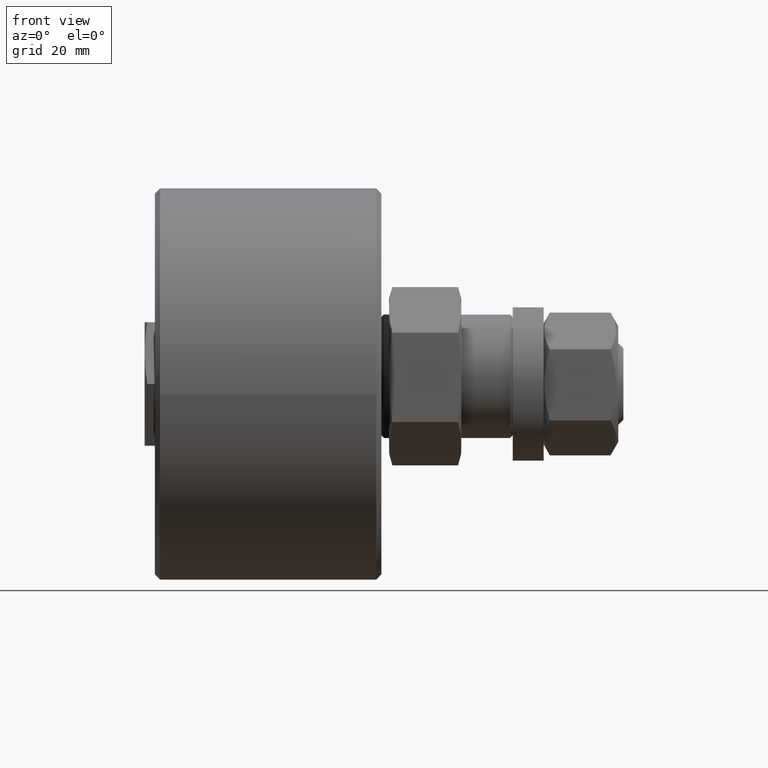
[diagram: clean part render]
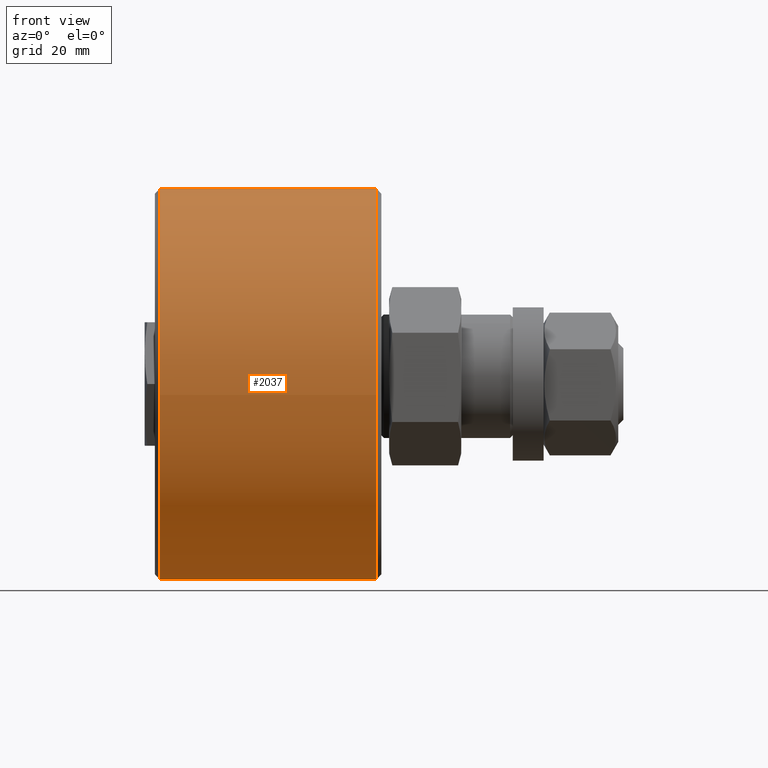
[diagram: same view with one face highlighted and labeled with its STEP entity id]
A machine part, front view. The second image highlights one B-rep face of the part: STEP entity #2037.
In plain terms, the highlighted cylindrical surface (bore or boss wall) has radius 38 mm, axis along (1, -0, 0).
Its self-contained STEP definition (entity closure, byte-faithful):
#281=CYLINDRICAL_SURFACE('',#2385,38.);
#350=FACE_OUTER_BOUND('',#475,.T.);
#475=EDGE_LOOP('',(#1616,#1617,#1618,#1619,#1620,#1621));
#608=LINE('',#3484,#682);
#682=VECTOR('',#2824,38.);
#758=CIRCLE('',#2383,38.);
#759=CIRCLE('',#2384,38.);
#760=CIRCLE('',#2386,38.);
#761=CIRCLE('',#2387,38.);
#924=VERTEX_POINT('',#3474);
#925=VERTEX_POINT('',#3475);
#926=VERTEX_POINT('',#3480);
#927=VERTEX_POINT('',#3481);
#1178=EDGE_CURVE('',#924,#925,#758,.T.);
#1179=EDGE_CURVE('',#925,#924,#759,.T.);
#1181=EDGE_CURVE('',#926,#927,#760,.T.);
#1182=EDGE_CURVE('',#927,#926,#761,.T.);
#1183=EDGE_CURVE('',#927,#925,#608,.T.);
#1616=ORIENTED_EDGE('',*,*,#1181,.F.);
#1617=ORIENTED_EDGE('',*,*,#1182,.F.);
#1618=ORIENTED_EDGE('',*,*,#1183,.T.);
#1619=ORIENTED_EDGE('',*,*,#1178,.F.);
#1620=ORIENTED_EDGE('',*,*,#1179,.F.);
#1621=ORIENTED_EDGE('',*,*,#1183,.F.);
#2037=ADVANCED_FACE('',(#350),#281,.T.);
#2383=AXIS2_PLACEMENT_3D('',#3476,#2813,#2814);
#2384=AXIS2_PLACEMENT_3D('',#3477,#2815,#2816);
#2385=AXIS2_PLACEMENT_3D('',#3479,#2818,#2819);
#2386=AXIS2_PLACEMENT_3D('',#3482,#2820,#2821);
#2387=AXIS2_PLACEMENT_3D('',#3483,#2822,#2823);
#2813=DIRECTION('center_axis',(-1.,0.,0.));
#2814=DIRECTION('ref_axis',(0.,-1.,0.));
#2815=DIRECTION('center_axis',(-1.,0.,0.));
#2816=DIRECTION('ref_axis',(0.,-1.,0.));
#2818=DIRECTION('center_axis',(1.,0.,0.));
#2819=DIRECTION('ref_axis',(0.,1.,0.));
#2820=DIRECTION('center_axis',(1.,0.,0.));
#2821=DIRECTION('ref_axis',(0.,-1.,0.));
#2822=DIRECTION('center_axis',(1.,0.,0.));
#2823=DIRECTION('ref_axis',(0.,-1.,0.));
#2824=DIRECTION('',(-1.,0.,0.));
#3474=CARTESIAN_POINT('',(-21.,38.,-4.65365783675994E-15));
#3475=CARTESIAN_POINT('',(-21.,-38.,-4.65365783675994E-15));
#3476=CARTESIAN_POINT('Origin',(-21.,0.,0.));
#3477=CARTESIAN_POINT('Origin',(-21.,0.,0.));
#3479=CARTESIAN_POINT('Origin',(0.,0.,0.));
#3480=CARTESIAN_POINT('',(21.,38.,4.65365783675994E-15));
#3481=CARTESIAN_POINT('',(21.,-38.,-4.65365783675994E-15));
#3482=CARTESIAN_POINT('Origin',(21.,0.,0.));
#3483=CARTESIAN_POINT('Origin',(21.,0.,0.));
#3484=CARTESIAN_POINT('',(0.,-38.,-4.65365783675994E-15));